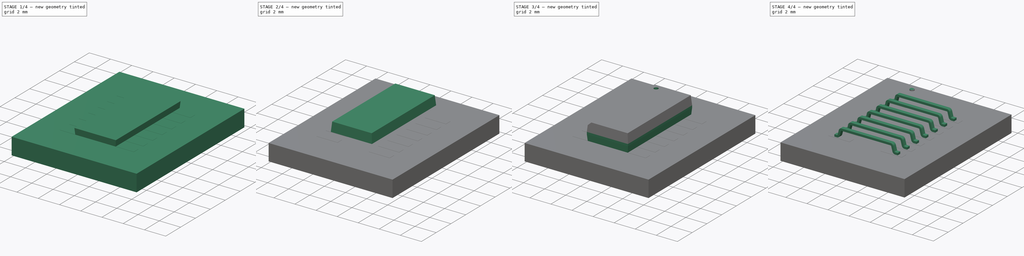
[diagram: build sequence overview — one tinted view per stage of 4, left to right]
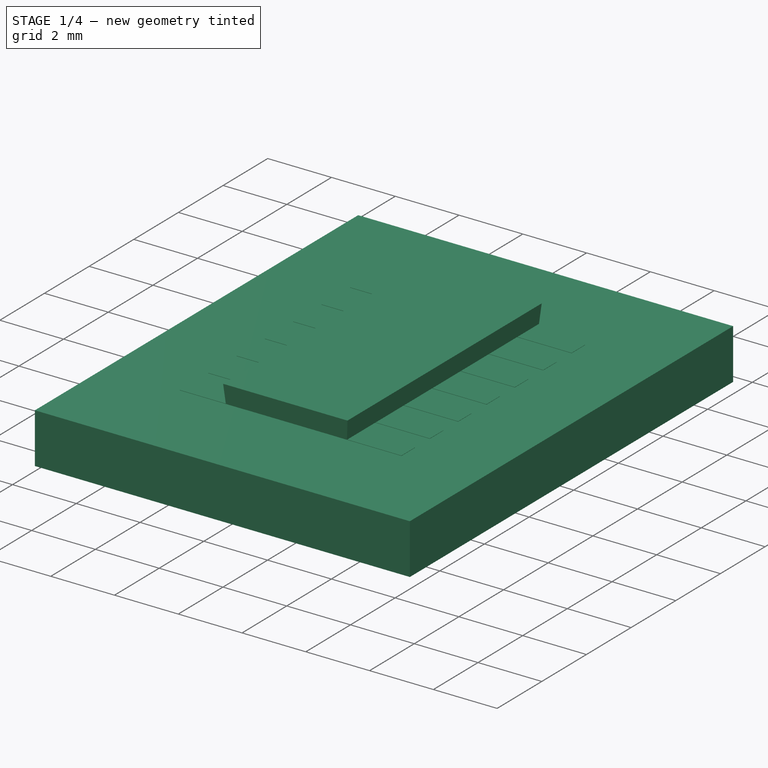
[diagram: stage 1 of 4 — iso view after this stage's code; geometry added in this stage tinted green]
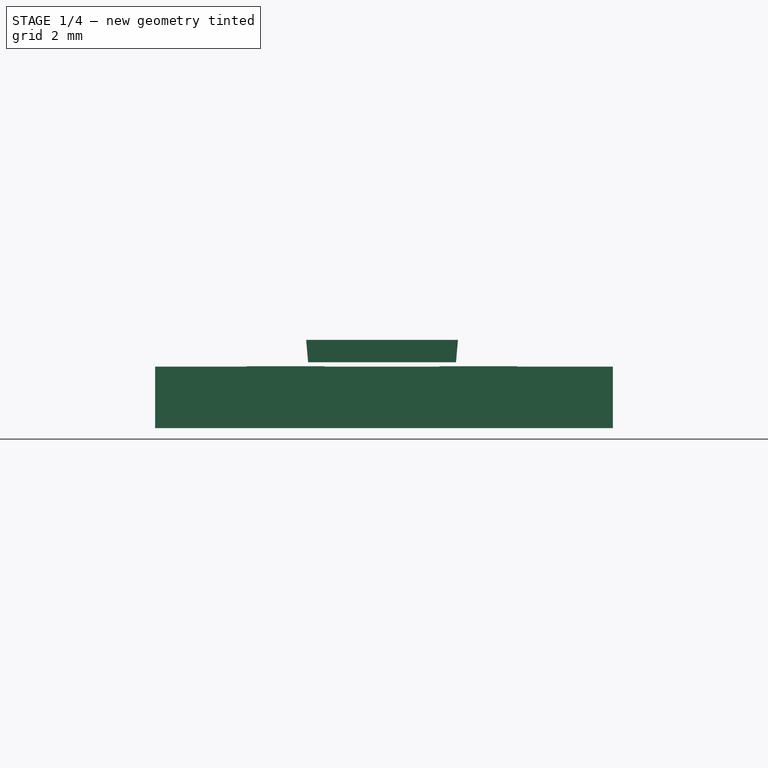
[diagram: stage 1 of 4 — front view after this stage's code; geometry added in this stage tinted green]
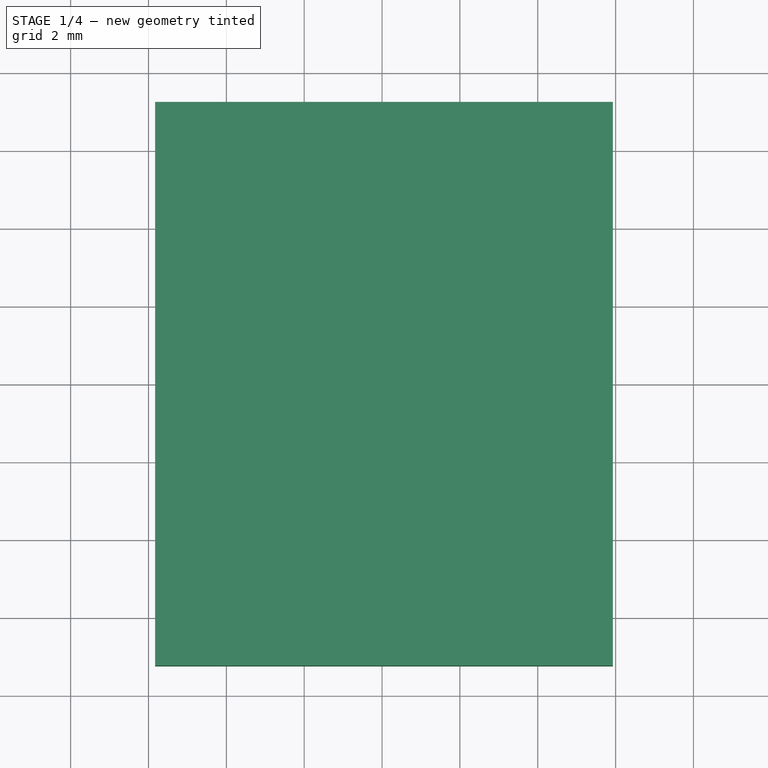
[diagram: stage 1 of 4 — top view after this stage's code; geometry added in this stage tinted green]
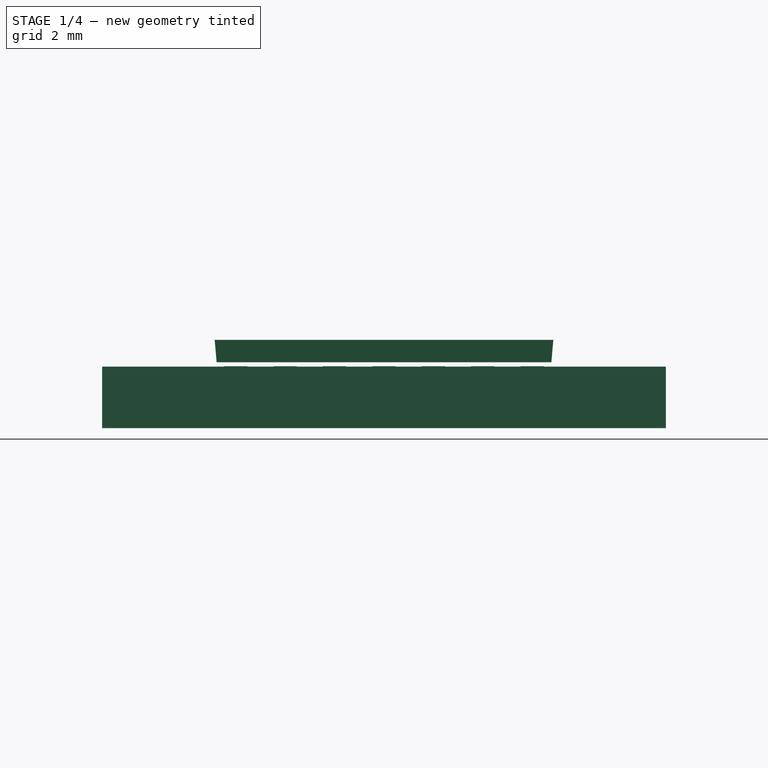
[diagram: stage 1 of 4 — right view after this stage's code; geometry added in this stage tinted green]
FCSTD DOCUMENT  (FreeCAD 0.19R23323 (Git))
Label: SOIC-14_3.9x8.7mm_P1.27mm
License: Creative Commons Attribution
LicenseURL: http://creativecommons.org/licenses/by/4.0/
objects: Part::FeaturePython×6, PartDesign::Pad×5, PartDesign::Body×4, Sketcher::SketchObject×3, PartDesign::Draft×2, PartDesign::SubShapeBinder×2, Spreadsheet::Sheet×1, PartDesign::Mirrored×1, PartDesign::Plane×1, PartDesign::Boolean×1, PartDesign::Chamfer×1, PartDesign::Pocket×1, App::DocumentObjectGroup×1
note: 35 computed .brp shape members not serialized (recipe doc carries the construction recipe); baked Part::Feature solids carry a one-line shape summary decoded from their .brp

FEATURE [PartDesign::Plane] DatumPlane
  AttachmentOffset = pos=(0,0,0.1) rot=(0,0,1;0rad)
  Length = 60
  MapMode = 5
  Placement = pos=(0,0,0.1) rot=(0,0,1;0rad)
  ResizeMode = 0
  Support = -> [XY_Plane]
  Width = 60
  expr: .AttachmentOffset.Base.z = Spreadsheet.Standoff
FEATURE [Sketcher::SketchObject] Sketch
  MapMode = 5
  Placement = pos=(0,0,0.1) rot=(0,0,1;0rad)
  Support = -> [DatumPlane]
  expr: Constraints[9] = Spreadsheet.PackageWidth
  expr: Constraints[10] = Spreadsheet.OverallLength
  sketch-geometry (4):
    g0: LineSegment StartX=-1.95 StartY=4.35 StartZ=0 EndX=1.95 EndY=4.35 EndZ=0
    g1: LineSegment StartX=1.95 StartY=4.35 StartZ=0 EndX=1.95 EndY=-4.35 EndZ=0
    g2: LineSegment StartX=1.95 StartY=-4.35 StartZ=0 EndX=-1.95 EndY=-4.35 EndZ=0
    g3: LineSegment StartX=-1.95 StartY=-4.35 StartZ=0 EndX=-1.95 EndY=4.35 EndZ=0
  constraints (11):
    c: Coincident(g0,g1)
    c: Coincident(g1,g2)
    c: Coincident(g2,g3)
    c: Coincident(g3,g0)
    c: Horizontal(g0)
    c: Horizontal(g2)
    c: Vertical(g1)
    c: Vertical(g3)
    c: Symmetric(g0,g1,g-1)
    c: DistanceX(g0,g0) = 3.9
    c: DistanceY(g1,g1) = 8.7
FEATURE [PartDesign::Pad] Pad001
  Direction = (1,1,1)
  Length = 0.575
  Length2 = 100
  Placement = pos=(0,0,0.1) rot=(0,0,1;0rad)
  Profile = -> Sketch
  Type = 0
  expr: Length = Spreadsheet.OverallHeight / 2 - Spreadsheet.LeadThickness - Spreadsheet.Standoff
FEATURE [PartDesign::Draft] Draft
  Angle = 5
  Base = -> Pad001 [Face3,Face2,Face1,Face4]
  BaseFeature = -> Pad001
  NeutralPlane = -> Pad001 [Face6]
  Placement = pos=(0,0,0.1) rot=(0,0,1;0rad)
  SupportTransform = false
  expr: Angle = Spreadsheet.DraftAngleBottom
FEATURE [PartDesign::Body] Body003  label="Dot"
  Group = -> [Binder001,Pad004]
  Origin = -> Origin003
  Tip = -> Pad004
FEATURE [Part::FeaturePython] FCrtYd_lines  label="FCrtYd"  # a2plus imported part (geometry in sourceFile) (typed FeaturePython)
  fixedPosition = true
FEATURE [Part::FeaturePython] FFab_lines  label="FFab"  # a2plus imported part (geometry in sourceFile) (typed FeaturePython)
  fixedPosition = true
FEATURE [Part::FeaturePython] Filk_lines  label="FrontSilk"  # a2plus imported part (geometry in sourceFile) (typed FeaturePython)
  fixedPosition = true
FEATURE [Part::FeaturePython] TopPads  # a2plus imported part (geometry in sourceFile) (typed FeaturePython)
  fixedPosition = true
FEATURE [Part::FeaturePython] newPCB  label="Pcb"  # a2plus imported part (geometry in sourceFile) (typed FeaturePython)
  fixedPosition = true
FEATURE [App::DocumentObjectGroup] _module_fp
  Group = -> [FCrtYd_lines,FFab_lines,Filk_lines,TopPads,newPCB]
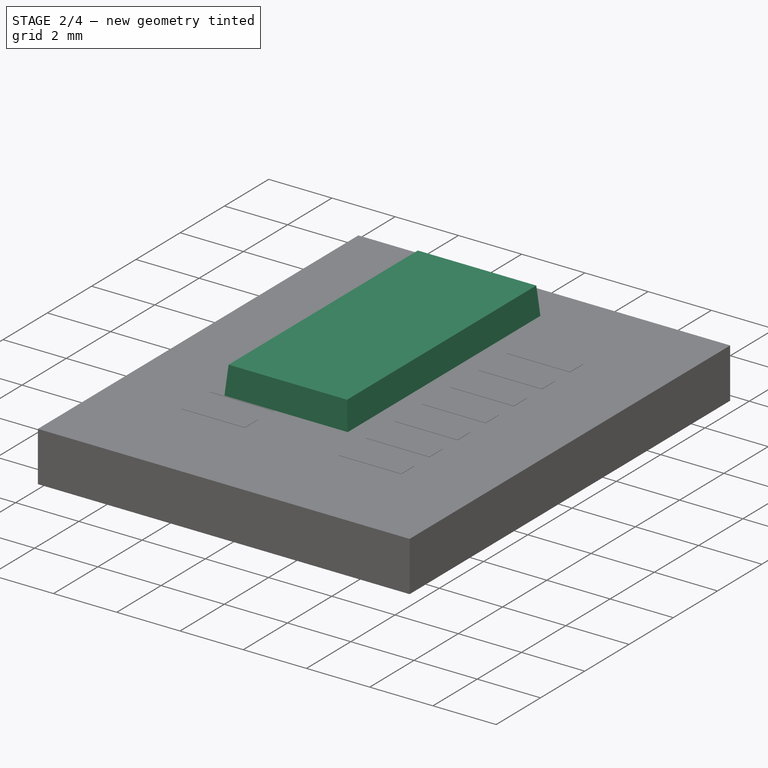
[diagram: stage 2 of 4 — iso view after this stage's code; geometry added in this stage tinted green]
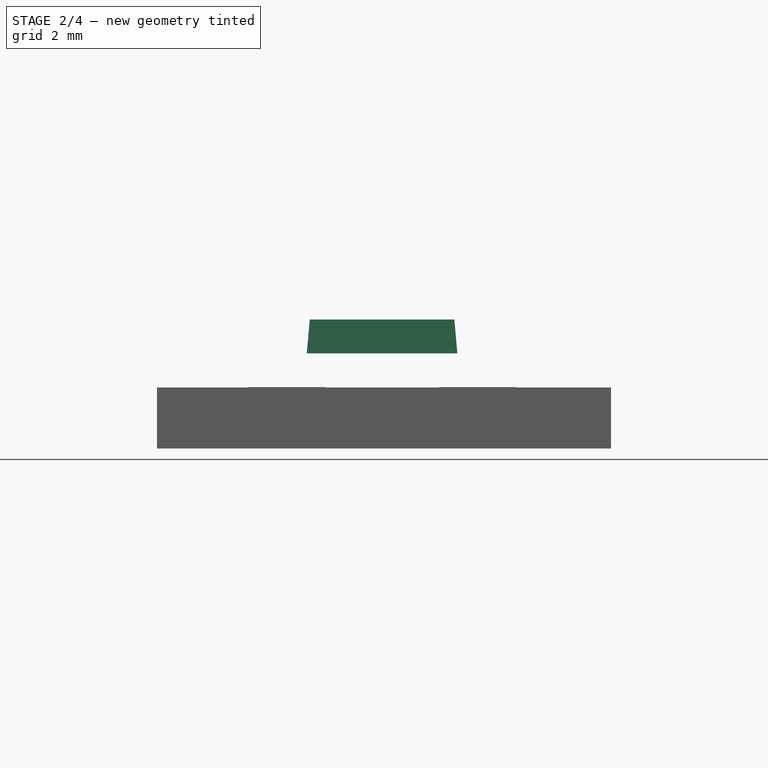
[diagram: stage 2 of 4 — front view after this stage's code; geometry added in this stage tinted green]
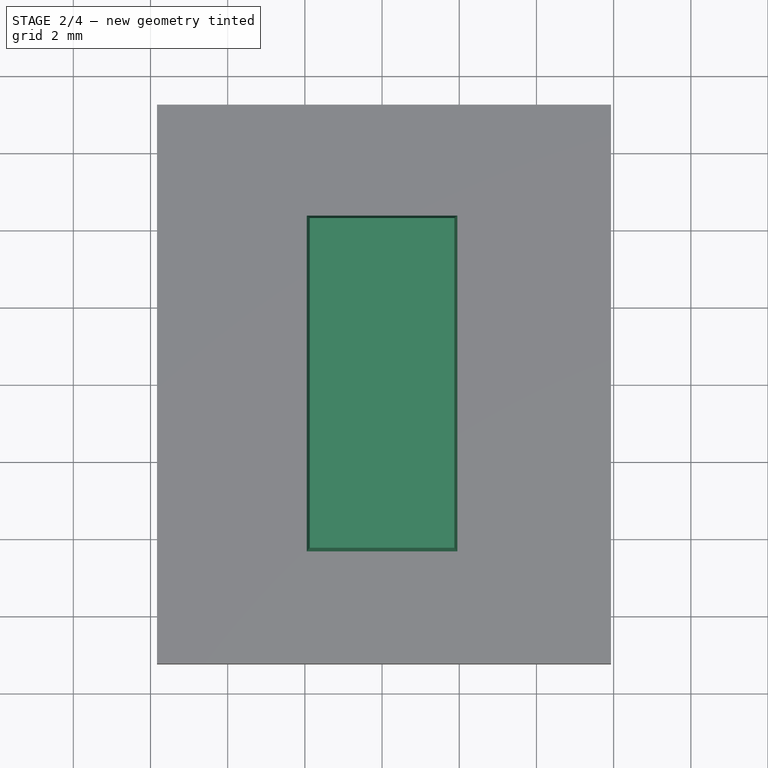
[diagram: stage 2 of 4 — top view after this stage's code; geometry added in this stage tinted green]
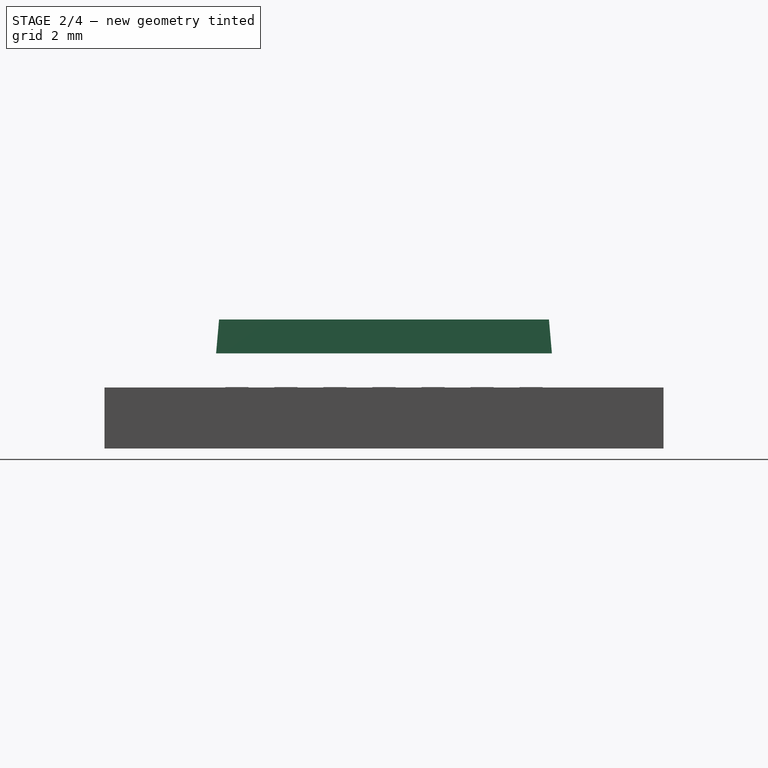
[diagram: stage 2 of 4 — right view after this stage's code; geometry added in this stage tinted green]
FEATURE [PartDesign::Pad] Pad002
  BaseFeature = -> Draft
  Direction = (1,1,1)
  Length = 0.2
  Length2 = 100
  Placement = pos=(0,0,0.1) rot=(0,0,1;0rad)
  Profile = -> Draft [Face6]
  Type = 0
  expr: Length = Spreadsheet.LeadThickness
FEATURE [PartDesign::Body] Body
  Group = -> [DatumPlane,Sketch,Pad001,Draft,Pad002]
  Origin = -> Origin
  Tip = -> Pad002
FEATURE [PartDesign::SubShapeBinder] Binder
  BindMode = 0
  ClaimChildren = false
  Context = -> Body002 [Binder.]
  Fuse = false
  MakeFace = true
  PartialLoad = false
  Relative = true
  Support = -> [Body[Pad002.Face9]]
  _Version = 2
FEATURE [PartDesign::Pad] Pad003
  Direction = (1,1,1)
  Length = 0.875
  Length2 = 100
  Profile = -> Binder [Face1]
  Type = 0
  expr: Length = Spreadsheet.OverallHeight / 2
FEATURE [PartDesign::Draft] Draft001
  Angle = 5
  Base = -> Pad003 [Face3,Face2,Face1,Face4]
  BaseFeature = -> Pad003
  NeutralPlane = -> Pad003 [Face5]
  Reversed = true
  SupportTransform = false
  expr: Angle = Spreadsheet.DraftAngleTop
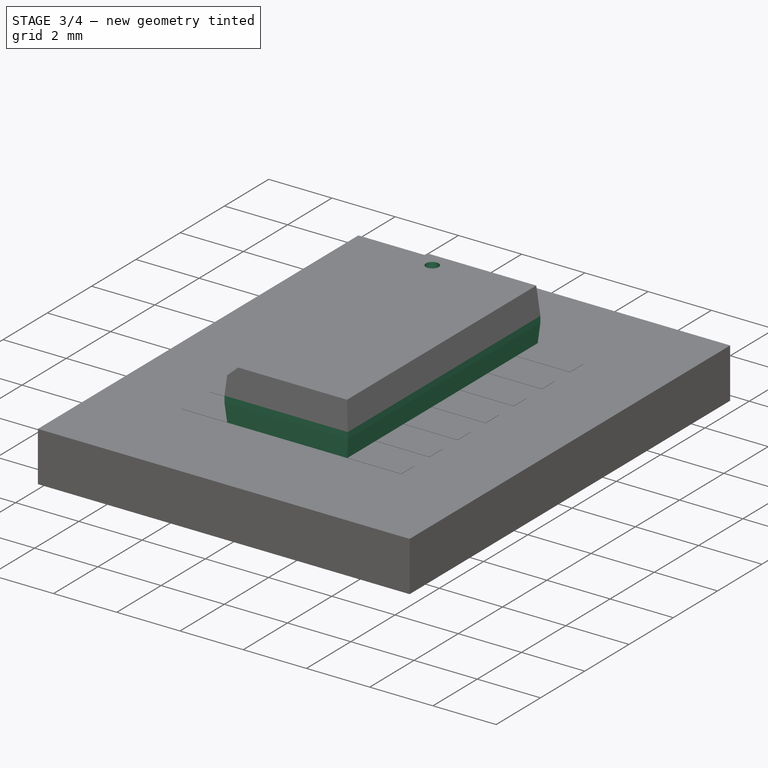
[diagram: stage 3 of 4 — iso view after this stage's code; geometry added in this stage tinted green]
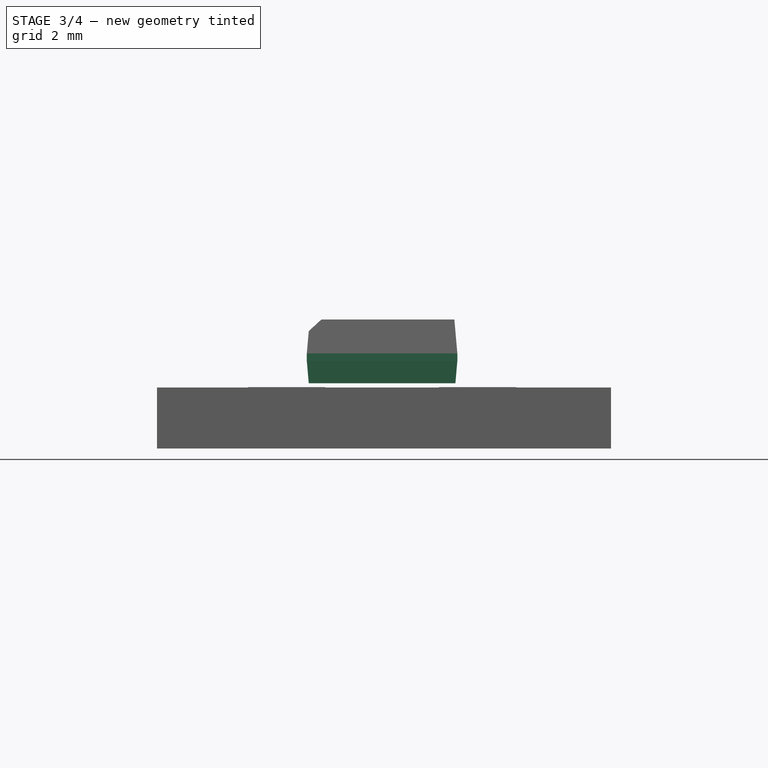
[diagram: stage 3 of 4 — front view after this stage's code; geometry added in this stage tinted green]
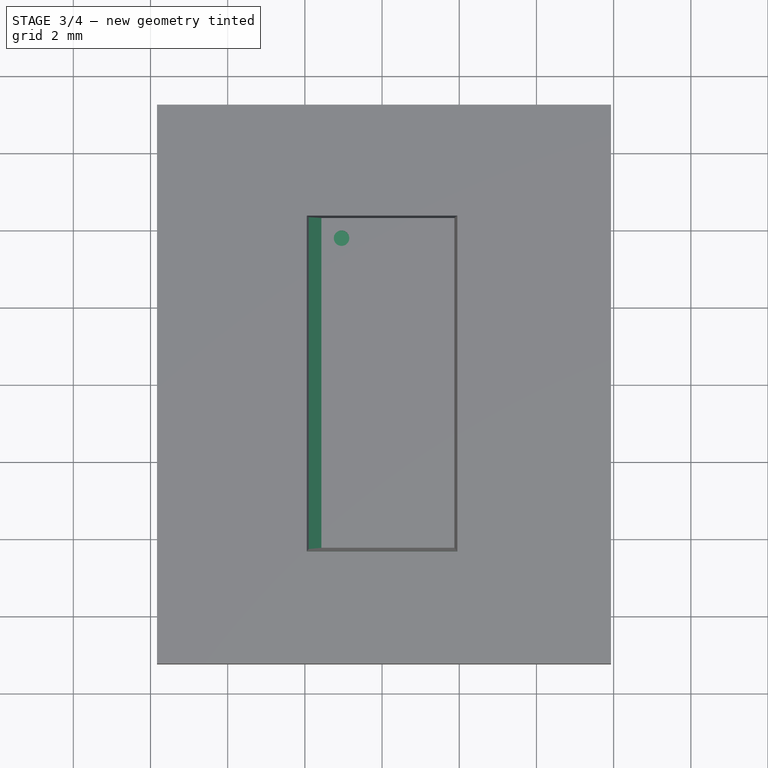
[diagram: stage 3 of 4 — top view after this stage's code; geometry added in this stage tinted green]
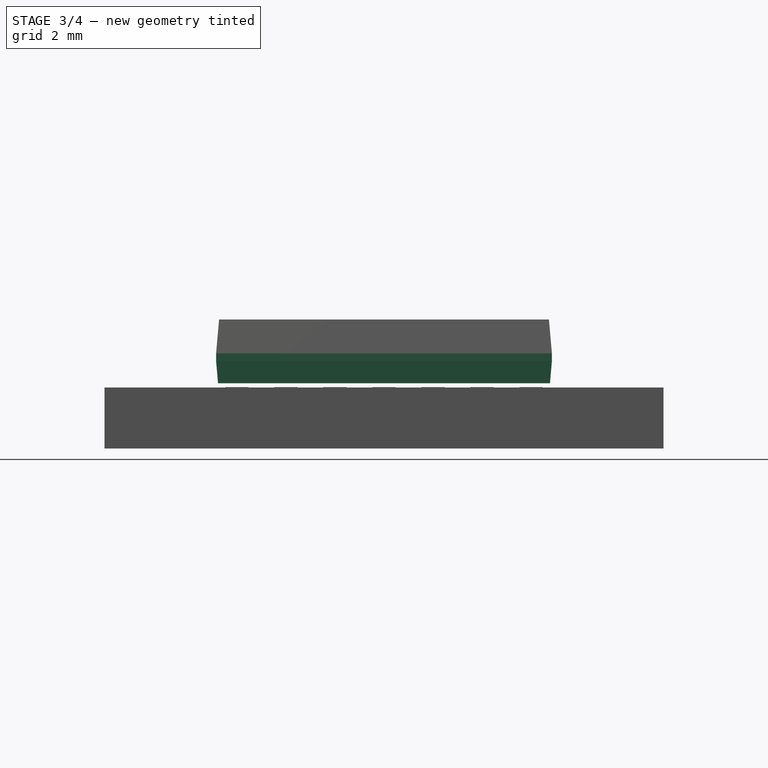
[diagram: stage 3 of 4 — right view after this stage's code; geometry added in this stage tinted green]
FEATURE [PartDesign::Boolean] Boolean
  BaseFeature = -> Draft001
  Group = -> [Body]
  Type = 0
FEATURE [PartDesign::Chamfer] Chamfer
  Angle = 45
  Base = -> Boolean [Edge7]
  BaseFeature = -> Boolean
  ChamferType = 0
  FlipDirection = false
  Size = 0.3
  Size2 = 1
  SupportTransform = false
  expr: Size = Spreadsheet.Chamfer
FEATURE [Sketcher::SketchObject] Sketch003
  ExternalGeometry = -> [Chamfer]
  MapMode = 5
  Placement = pos=(0,0,1.75) rot=(0,0,1;0rad)
  Support = -> [Chamfer]
  expr: Constraints[11] = Spreadsheet.PackageWidth / 2 - 0.6 - Spreadsheet.Chamfer
  expr: Constraints[12] = Spreadsheet.OverallLength / 2 - 0.6
  sketch-geometry (5):
    g0: Circle CenterX=-1.05 CenterY=3.75 CenterZ=0 NormalX=0 NormalY=0 NormalZ=1 AngleXU=0 Radius=0.2
    g1: LineSegment StartX=-1.05 StartY=3.75 StartZ=0 EndX=0 EndY=3.75 EndZ=0
    g2: LineSegment StartX=0 StartY=3.75 StartZ=0 EndX=0 EndY=0 EndZ=0
    g3: LineSegment StartX=0 StartY=0 StartZ=0 EndX=-1.05 EndY=0 EndZ=0
    g4: LineSegment StartX=-1.05 StartY=0 StartZ=0 EndX=-1.05 EndY=3.75 EndZ=0
  constraints (13):
    c: Radius(g0) = 0.2
    c: Coincident(g1,g2)
    c: Coincident(g2,g3)
    c: Coincident(g3,g4)
    c: Coincident(g4,g1)
    c: Horizontal(g1)
    c: Horizontal(g3)
    c: Vertical(g2)
    c: Vertical(g4)
    c: Coincident(g1,g0)
    c: Coincident(g2,g-1)
    c: DistanceX(g1,g1) = 1.05
    c: DistanceY(g2,g2) = 3.75
FEATURE [PartDesign::Pocket] Pocket
  BaseFeature = -> Chamfer
  Length = 0.2
  Length2 = 100
  Profile = -> Sketch003
  Type = 0
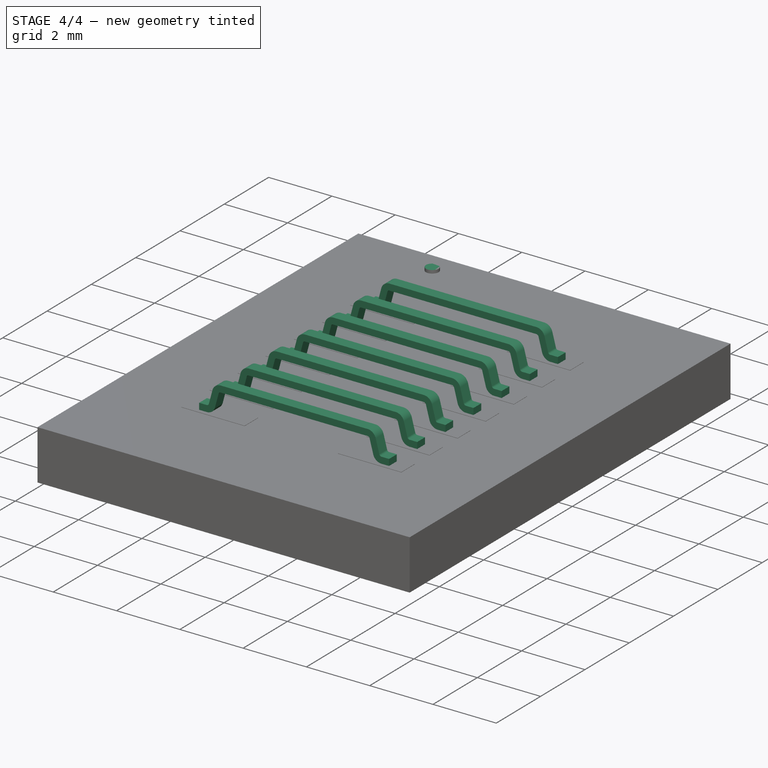
[diagram: stage 4 of 4 — iso view after this stage's code; geometry added in this stage tinted green]
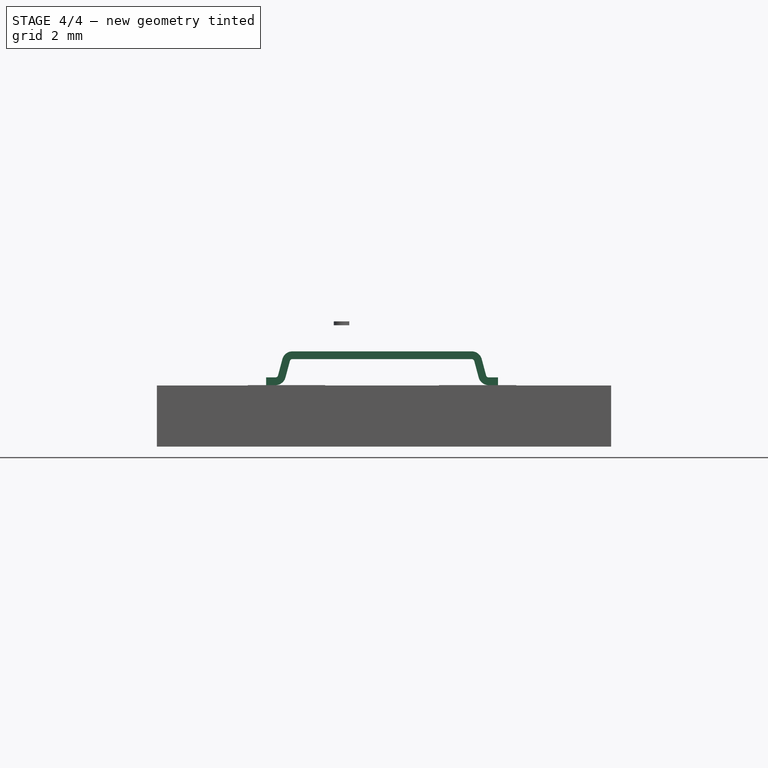
[diagram: stage 4 of 4 — front view after this stage's code; geometry added in this stage tinted green]
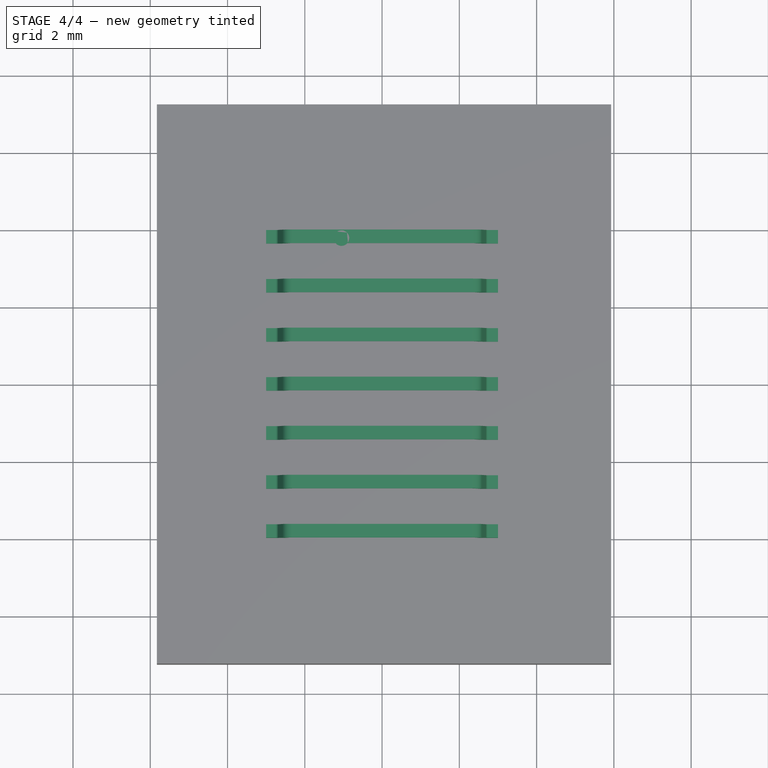
[diagram: stage 4 of 4 — top view after this stage's code; geometry added in this stage tinted green]
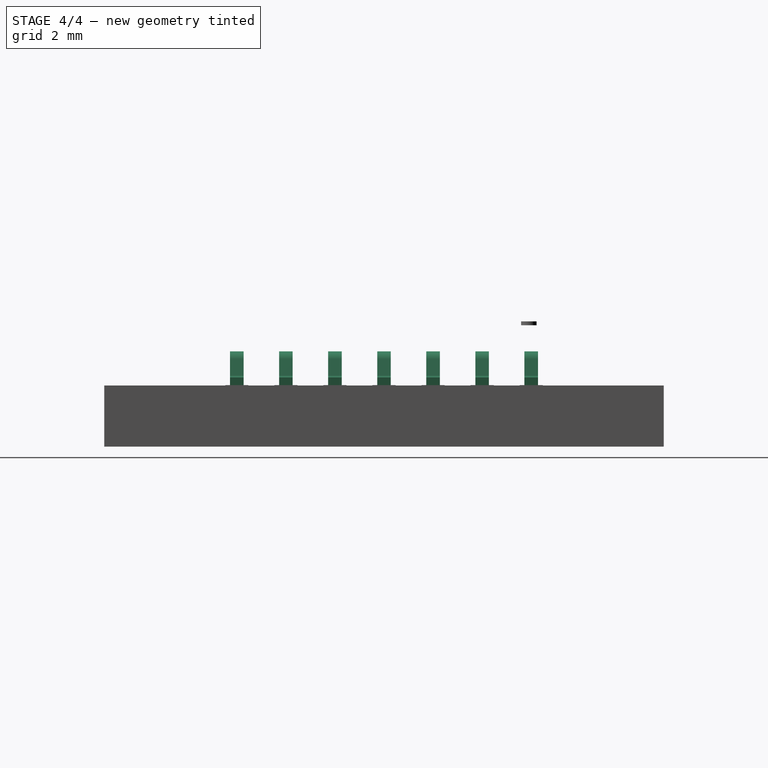
[diagram: stage 4 of 4 — right view after this stage's code; geometry added in this stage tinted green]
FEATURE [Spreadsheet::Sheet] Spreadsheet
  cells = A1=SOIC-8_3.9x4.9mm_P1.27mm; A2=Molded Package Width; B2(PackageWidth)=3.9; A3=Overal Width; B3(OverallWidth)=6; A4=Overall Length; B4(OverallLength)=8.699999999999999; A5=Overall Height; B5(OverallHeight)=1.75; A6=Pitch; B6(Pitch)=1.27; A7=Standoff; B7(Standoff)=0.1; A8=Chamfer; B8(Chamfer)=0.3; A9=Draft Angle Top; B9(DraftAngleTop)=5; A10=Draft Angle Bottom; B10(DraftAngleBottom)=5; A11=Lead Width; B11(LeadWidth)=0.35; A12=Lead Thickness; B12(LeadThickness)=0.2; A13=Foot Length; B13(FootLength)=0.5; A14=Footprint; B14(Footprint)=1.04; A15=Lead Filet Radius; B15(LeadFiletRadius)=0.07000000000000001; A16=Lead Vertical Angle; B16(LeadVerticalAngle)=15; A17=Num Pins; B17(NumPins)=14
FEATURE [Sketcher::SketchObject] Sketch002
  MapMode = 5
  Placement = pos=(0,0,0) rot=(1,0,0;1.5708rad)
  Support = -> [XZ_Plane001]
  expr: Constraints[32] = Spreadsheet.LeadFiletRadius
  expr: Constraints[38] = Spreadsheet.OverallWidth / 2
  expr: Constraints[33] = Spreadsheet.LeadThickness
  expr: Constraints[45] = Spreadsheet.OverallHeight / 2
  expr: Constraints[37] = Spreadsheet.PackageWidth / 2
  expr: Constraints[39] = Spreadsheet.FootLength
  expr: Constraints[43] = Spreadsheet.LeadVerticalAngle
  sketch-geometry (18):
    g0: LineSegment StartX=0 StartY=0.675 StartZ=0 EndX=2.31904 EndY=0.675 EndZ=0
    g1: ArcOfCircle CenterX=2.31904 CenterY=0.605 CenterZ=0 NormalX=0 NormalY=0 NormalZ=1 AngleXU=0 Radius=0.07 StartAngle=0.261799 EndAngle=1.5708
    g2: LineSegment StartX=2.38666 StartY=0.623117 StartZ=0 EndX=2.5 EndY=0.200119 EndZ=0
    g3: ArcOfCircle CenterX=2.7608 CenterY=0.27 CenterZ=0 NormalX=0 NormalY=0 NormalZ=1 AngleXU=0 Radius=0.27 StartAngle=3.40339 EndAngle=4.71239
    g4: LineSegment StartX=2.7608 StartY=0 StartZ=0 EndX=3 EndY=0 EndZ=0
    g5: LineSegment StartX=3 StartY=0 StartZ=0 EndX=3 EndY=0.2 EndZ=0
    g6: LineSegment StartX=3 StartY=0.2 StartZ=0 EndX=2.7608 EndY=0.2 EndZ=0
    g7: ArcOfCircle CenterX=2.7608 CenterY=0.27 CenterZ=0 NormalX=0 NormalY=0 NormalZ=1 AngleXU=0 Radius=0.07 StartAngle=3.40339 EndAngle=4.71239
    g8: LineSegment StartX=2.69319 StartY=0.251883 StartZ=0 EndX=2.57984 EndY=0.674881 EndZ=0
    g9: ArcOfCircle CenterX=2.31904 CenterY=0.605 CenterZ=0 NormalX=0 NormalY=0 NormalZ=1 AngleXU=0 Radius=0.27 StartAngle=0.261799 EndAngle=1.5708
    g10: LineSegment StartX=2.31904 StartY=0.875 StartZ=0 EndX=0 EndY=0.875 EndZ=0
    g11: LineSegment StartX=0 StartY=0.875 StartZ=0 EndX=0 EndY=0.675 EndZ=0
    g12: LineSegment StartX=2.38666 StartY=0.623117 StartZ=0 EndX=2.57984 EndY=0.674881 EndZ=0
    g13: LineSegment StartX=2.31904 StartY=0.875 StartZ=0 EndX=2.31904 EndY=0.675 EndZ=0
    g14: LineSegment StartX=2.7608 StartY=0.2 StartZ=0 EndX=2.7608 EndY=0 EndZ=0
    g15: LineSegment StartX=2.69319 StartY=0.251883 StartZ=0 EndX=2.5 EndY=0.200119 EndZ=0
    g16: LineSegment StartX=1.95 StartY=0.875 StartZ=0 EndX=1.95 EndY=0.675 EndZ=0
    g17: LineSegment StartX=2.38666 StartY=0.623117 StartZ=0 EndX=2.38666 EndY=0 EndZ=0
  constraints (46):
    c: PointOnObject(g0,g-2)
    c: Horizontal(g0)
    c: Tangent(g1,g2) = 1.5708
    c: Tangent(g2,g3) = -1.5708
    c: Tangent(g3,g4) = -1.5708
    c: Coincident(g4,g5)
    c: Coincident(g5,g6)
    c: Tangent(g6,g7) = 1.5708
    c: Tangent(g7,g8) = 1.5708
    c: Tangent(g8,g9) = -1.5708
    c: Tangent(g9,g10) = -1.5708
    c: Coincident(g10,g11)
    c: Coincident(g11,g0)
    c: Vertical(g11)
    c: Coincident(g9,g1)
    c: Coincident(g7,g3)
    c: Perpendicular(g6,g5)
    c: Equal(g4,g6)
    c: Coincident(g0,g1)
    c: Equal(g10,g0)
    c: Coincident(g12,g1)
    c: Coincident(g12,g8)
    c: Coincident(g13,g9)
    c: Coincident(g13,g0)
    c: Vertical(g13)
    c: Coincident(g14,g6)
    c: Coincident(g14,g3)
    c: Coincident(g15,g7)
    c: Coincident(g15,g2)
    c: Perpendicular(g2,g12)
    c: Horizontal(g4)
    c: Equal(g7,g1)
    c: Radius(g1) = 0.07
    c: DistanceY(g5,g5) = 0.2
    c: PointOnObject(g16,g10)
    c: PointOnObject(g16,g0)
    c: Vertical(g16)
    c: DistanceX(g10,g16) = 1.95
    c: DistanceX(g10,g5) = 3
    c: DistanceX(g2,g4) = 0.5
    c: Coincident(g17,g1)
    c: PointOnObject(g17,g-1)
    c: Vertical(g17)
    c: Angle(g17,g2) = 0.261799
    c: PointOnObject(g4,g-1)
    c: DistanceY(g-1,g10) = 0.875
FEATURE [PartDesign::Pad] Pad
  Direction = (1,1,1)
  Length = 0.35
  Length2 = 100
  Midplane = true
  Placement = pos=(0,0,0) rot=(1,0,0;1.5708rad)
  Profile = -> Sketch002
  Type = 0
  expr: Length = Spreadsheet.LeadWidth
FEATURE [PartDesign::Mirrored] Mirrored
  BaseFeature = -> Pad
  MirrorPlane = -> Sketch002 [V_Axis]
  Originals = -> [Pad]
  Placement = pos=(0,0,0) rot=(1,0,0;1.5708rad)
FEATURE [PartDesign::Body] Body001  label="Leads Right"
  Group = -> [Sketch002,Pad,Mirrored]
  Origin = -> Origin001
  Tip = -> Mirrored
FEATURE [Part::FeaturePython] Array  label="Leads"  # Draft array (typed FeaturePython)
  Angle = 360
  ArrayType = 0
  Axis = (0,0,1)
  Base = -> Body001
  Center = (0,0,0)
  Count = 7
  ExpandArray = false
  Fuse = false
  IntervalAxis = (0,0,0)
  IntervalX = (0,0,0)
  IntervalY = (0,1.27,0)
  IntervalZ = (0,0,0)
  NumberCircles = 3
  NumberPolar = 5
  NumberX = 1
  NumberY = 7
  NumberZ = 1
  Placement = pos=(0,-3.81,0) rot=(0,0,1;0rad)
  PlacementList = 7 placements: arithmetic series from (0,0,0) step (0,1.27,0) to (0,7.62,0)
  RadialDistance = 50
  ScaleList = (7) [(1,1,1),(1,1,1),(1,1,1),(1,1,1),(1,1,1),(1,1,1),(1,1,1)]
  Symmetry = 1
  TangentialDistance = 25
  expr: NumberY = Spreadsheet.NumPins / 2
  expr: .IntervalY.y = Spreadsheet.Pitch
  expr: .Placement.Base.y = -Spreadsheet.Pitch * Spreadsheet.NumPins / 4 + Spreadsheet.Pitch / 2
FEATURE [PartDesign::Body] Body002  label="Package"
  Group = -> [Binder,Pad003,Draft001,Boolean,Chamfer,Sketch003,Pocket]
  Origin = -> Origin002
  Tip = -> Pocket
FEATURE [PartDesign::SubShapeBinder] Binder001
  BindMode = 0
  ClaimChildren = false
  Context = -> Body003 [Binder001.]
  Fuse = false
  MakeFace = true
  PartialLoad = false
  Relative = true
  Support = -> [Body002[Pocket.Face16]]
  _Version = 2
FEATURE [PartDesign::Pad] Pad004
  Direction = (1,1,1)
  Length = 0.1
  Length2 = 100
  Profile = -> Binder001
  Type = 0
  expr: Length = 0.1
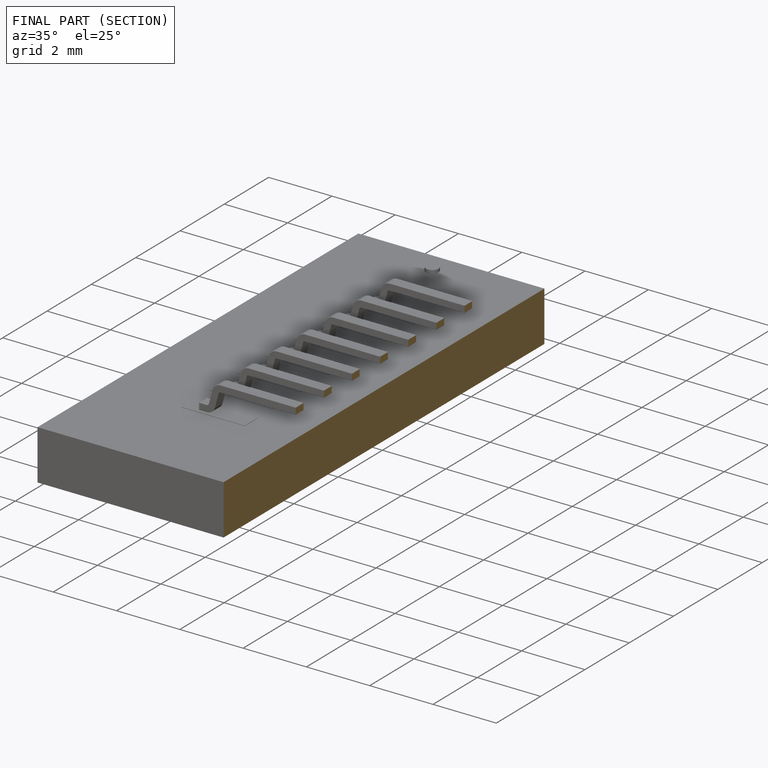
[diagram: finished part — half-section view (interior)]
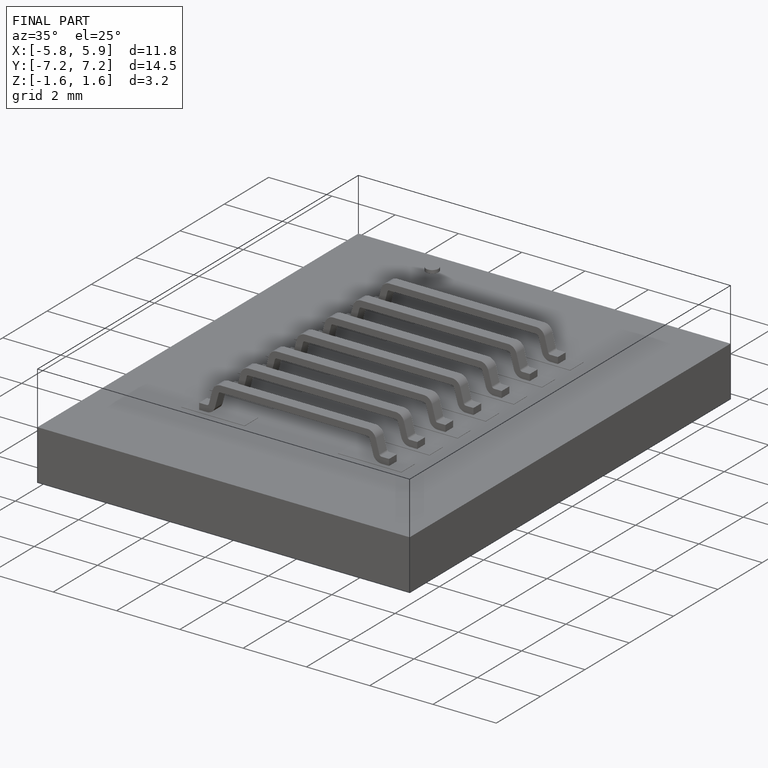
[diagram: finished part — iso view with bounding-box wireframe]
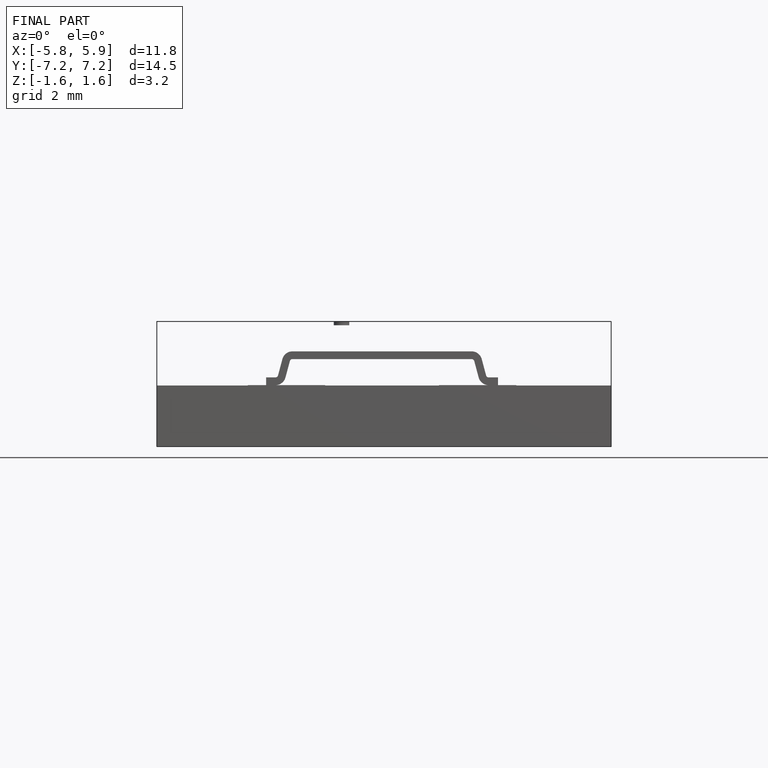
[diagram: finished part — front view with bounding-box wireframe]
